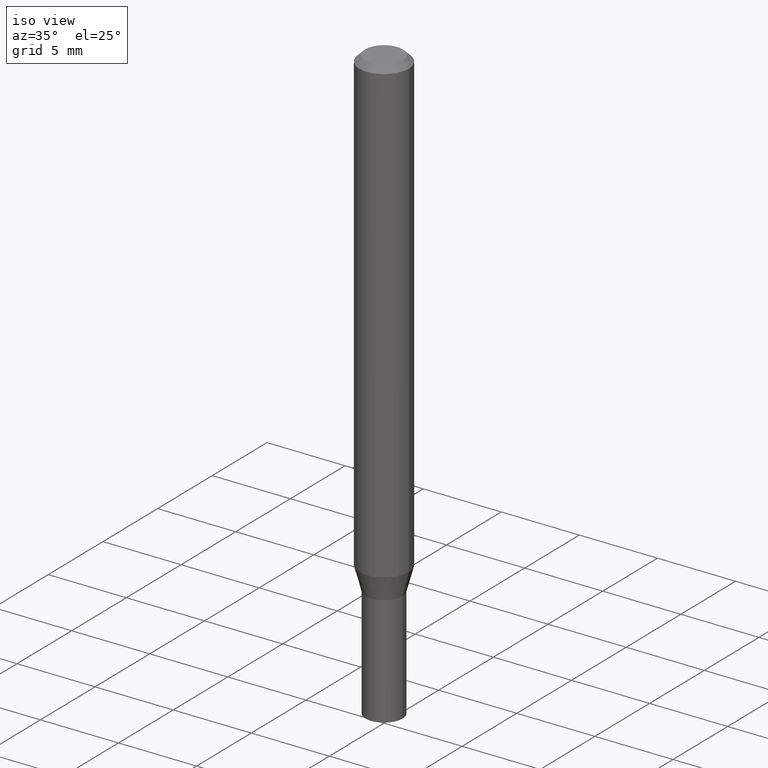
[diagram: clean part render]
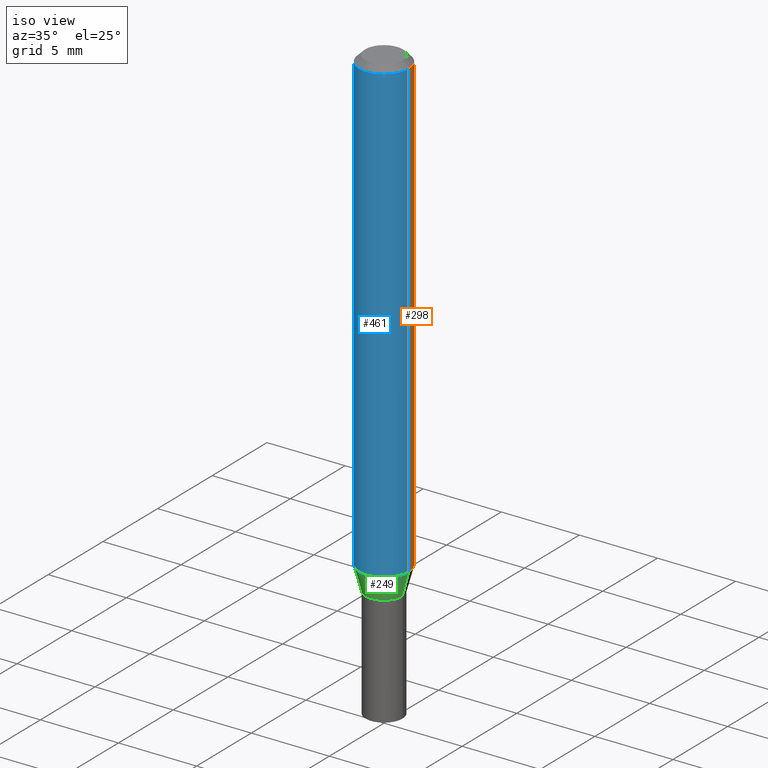
[diagram: same view with three faces highlighted in distinct colors, each labeled with its STEP entity id]
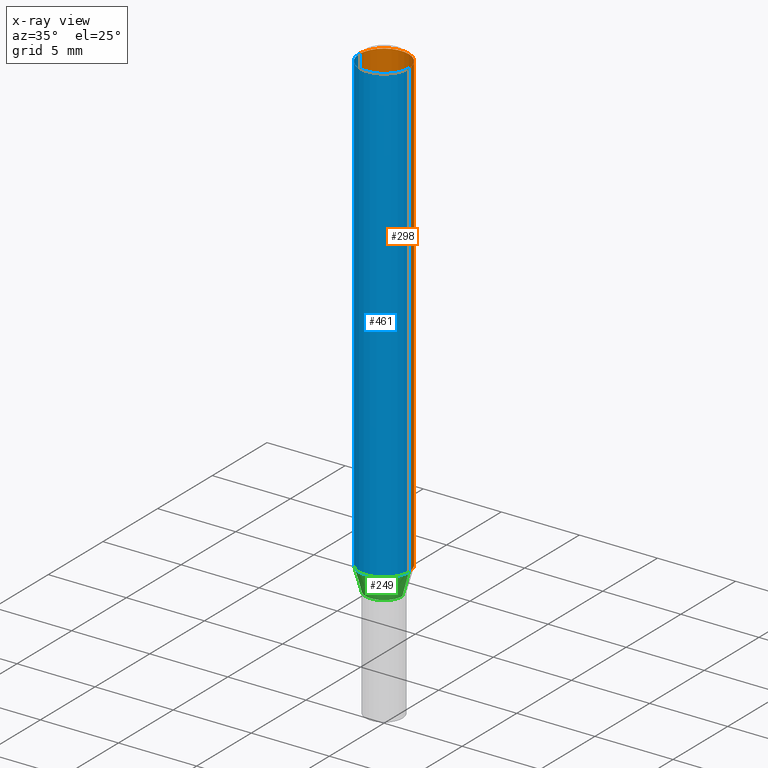
[diagram: x-ray of the same camera — body ghosted, the three highlighted faces saturated]
A machine part, iso view with three faces highlighted in distinct colors.
The next image is the same camera in x-ray (body ghosted, the three faces saturated) — at least one of them is partly hidden behind the body in this view.
Their STEP definitions:

[orange] entity #298 — the highlighted cylindrical surface (edge-blend (fillet) strip) has radius 1.5875 mm, axis along (-0, 0, 1).
#13 = VERTEX_POINT ( 'NONE', #205 ) ;
#40 = DIRECTION ( 'NONE',  ( -2.445468806185136597E-29, 3.491481338843145583E-15, 1.000000000000000000 ) ) ;
#44 = CARTESIAN_POINT ( 'NONE',  ( -0.06250000000000000000, 4.440892098500626162E-16, -3.074334431409316114E-30 ) ) ;
#51 = FACE_OUTER_BOUND ( 'NONE', #84, .T. ) ;
#84 = EDGE_LOOP ( 'NONE', ( #136, #132, #374, #376 ) ) ;
#86 = DIRECTION ( 'NONE',  ( -2.445468806185136877E-29, 3.491481338843145188E-15, 1.000000000000000000 ) ) ;
#89 = CIRCLE ( 'NONE', #380, 0.06250000000000000000 ) ;
#132 = ORIENTED_EDGE ( 'NONE', *, *, #331, .T. ) ;
#136 = ORIENTED_EDGE ( 'NONE', *, *, #222, .T. ) ;
#138 = CARTESIAN_POINT ( 'NONE',  ( 3.668203209277705088E-31, -5.237222008264718399E-17, -0.01499999999999999944 ) ) ;
#140 = DIRECTION ( 'NONE',  ( 1.000000000000000000, -6.982962677686266711E-15, 0.000000000000000000 ) ) ;
#146 = EDGE_CURVE ( 'NONE', #301, #13, #283, .T. ) ;
#157 = CARTESIAN_POINT ( 'NONE',  ( -0.06250000000000000000, -3.610523332873560286E-15, -1.161287187078898331 ) ) ;
#185 = DIRECTION ( 'NONE',  ( -2.445468806185136597E-29, 3.491481338843145583E-15, 1.000000000000000000 ) ) ;
#191 = CARTESIAN_POINT ( 'NONE',  ( 0.06250000000000000000, -4.888073874380388472E-16, -0.01499999999999999944 ) ) ;
#195 = LINE ( 'NONE', #441, #343 ) ;
#200 = CARTESIAN_POINT ( 'NONE',  ( 0.06250000000000000000, -4.491047710079014572E-15, -1.161287187078898331 ) ) ;
#205 = CARTESIAN_POINT ( 'NONE',  ( -0.06250000000000000000, -1.609403171553072375E-15, -0.01499999999999999944 ) ) ;
#222 = EDGE_CURVE ( 'NONE', #452, #344, #89, .T. ) ;
#241 = VECTOR ( 'NONE', #401, 39.37007874015748143 ) ;
#258 = CARTESIAN_POINT ( 'NONE',  ( 0.000000000000000000, 0.000000000000000000, 0.000000000000000000 ) ) ;
#266 = LINE ( 'NONE', #44, #241 ) ;
#270 = EDGE_CURVE ( 'NONE', #452, #301, #195, .T. ) ;
#283 = CIRCLE ( 'NONE', #398, 0.06250000000000000000 ) ;
#298 = ADVANCED_FACE ( 'NONE', ( #51 ), #410, .T. ) ;
#301 = VERTEX_POINT ( 'NONE', #191 ) ;
#321 = CARTESIAN_POINT ( 'NONE',  ( 2.839891591023928922E-29, -4.054612542723622902E-15, -1.161287187078898331 ) ) ;
#323 = DIRECTION ( 'NONE',  ( -2.445468806185136597E-29, 3.491481338843145583E-15, 1.000000000000000000 ) ) ;
#328 = DIRECTION ( 'NONE',  ( 1.000000000000000000, -6.982962677686270655E-15, 0.000000000000000000 ) ) ;
#331 = EDGE_CURVE ( 'NONE', #344, #13, #266, .T. ) ;
#332 = DIRECTION ( 'NONE',  ( 1.000000000000000000, -6.982962677686266711E-15, 4.876176775795935793E-29 ) ) ;
#343 = VECTOR ( 'NONE', #86, 39.37007874015748143 ) ;
#344 = VERTEX_POINT ( 'NONE', #157 ) ;
#364 = AXIS2_PLACEMENT_3D ( 'NONE', #258, #40, #332 ) ;
#374 = ORIENTED_EDGE ( 'NONE', *, *, #146, .F. ) ;
#376 = ORIENTED_EDGE ( 'NONE', *, *, #270, .F. ) ;
#380 = AXIS2_PLACEMENT_3D ( 'NONE', #321, #185, #328 ) ;
#398 = AXIS2_PLACEMENT_3D ( 'NONE', #138, #323, #140 ) ;
#401 = DIRECTION ( 'NONE',  ( -2.445468806185136877E-29, 3.491481338843145188E-15, 1.000000000000000000 ) ) ;
#410 = CYLINDRICAL_SURFACE ( 'NONE', #364, 0.06250000000000000000 ) ;
#441 = CARTESIAN_POINT ( 'NONE',  ( 0.06250000000000000000, -4.364351673553916694E-16, 3.047610484872459871E-30 ) ) ;
#452 = VERTEX_POINT ( 'NONE', #200 ) ;

[blue] entity #461 — the highlighted cylindrical surface (edge-blend (fillet) strip) has radius 1.5875 mm, axis along (-0, 0, 1).
#13 = VERTEX_POINT ( 'NONE', #205 ) ;
#18 = DIRECTION ( 'NONE',  ( -2.445468806185136597E-29, 3.491481338843145583E-15, 1.000000000000000000 ) ) ;
#21 = CYLINDRICAL_SURFACE ( 'NONE', #313, 0.06250000000000000000 ) ;
#32 = EDGE_CURVE ( 'NONE', #344, #452, #193, .T. ) ;
#43 = ORIENTED_EDGE ( 'NONE', *, *, #331, .F. ) ;
#44 = CARTESIAN_POINT ( 'NONE',  ( -0.06250000000000000000, 4.440892098500626162E-16, -3.074334431409316114E-30 ) ) ;
#86 = DIRECTION ( 'NONE',  ( -2.445468806185136877E-29, 3.491481338843145188E-15, 1.000000000000000000 ) ) ;
#99 = FACE_OUTER_BOUND ( 'NONE', #419, .T. ) ;
#108 = AXIS2_PLACEMENT_3D ( 'NONE', #169, #206, #163 ) ;
#130 = ORIENTED_EDGE ( 'NONE', *, *, #270, .T. ) ;
#157 = CARTESIAN_POINT ( 'NONE',  ( -0.06250000000000000000, -3.610523332873560286E-15, -1.161287187078898331 ) ) ;
#163 = DIRECTION ( 'NONE',  ( 1.000000000000000000, -6.982962677686266711E-15, 0.000000000000000000 ) ) ;
#165 = CARTESIAN_POINT ( 'NONE',  ( 0.000000000000000000, 0.000000000000000000, 0.000000000000000000 ) ) ;
#169 = CARTESIAN_POINT ( 'NONE',  ( 3.668203209277705088E-31, -5.237222008264718399E-17, -0.01499999999999999944 ) ) ;
#191 = CARTESIAN_POINT ( 'NONE',  ( 0.06250000000000000000, -4.888073874380388472E-16, -0.01499999999999999944 ) ) ;
#193 = CIRCLE ( 'NONE', #296, 0.06250000000000000000 ) ;
#195 = LINE ( 'NONE', #441, #343 ) ;
#200 = CARTESIAN_POINT ( 'NONE',  ( 0.06250000000000000000, -4.491047710079014572E-15, -1.161287187078898331 ) ) ;
#205 = CARTESIAN_POINT ( 'NONE',  ( -0.06250000000000000000, -1.609403171553072375E-15, -0.01499999999999999944 ) ) ;
#206 = DIRECTION ( 'NONE',  ( -2.445468806185136597E-29, 3.491481338843145583E-15, 1.000000000000000000 ) ) ;
#241 = VECTOR ( 'NONE', #401, 39.37007874015748143 ) ;
#243 = DIRECTION ( 'NONE',  ( 1.000000000000000000, -6.982962677686266711E-15, 4.876176775795935793E-29 ) ) ;
#266 = LINE ( 'NONE', #44, #241 ) ;
#270 = EDGE_CURVE ( 'NONE', #452, #301, #195, .T. ) ;
#296 = AXIS2_PLACEMENT_3D ( 'NONE', #310, #18, #426 ) ;
#301 = VERTEX_POINT ( 'NONE', #191 ) ;
#310 = CARTESIAN_POINT ( 'NONE',  ( 2.839891591023928922E-29, -4.054612542723622902E-15, -1.161287187078898331 ) ) ;
#313 = AXIS2_PLACEMENT_3D ( 'NONE', #165, #448, #243 ) ;
#331 = EDGE_CURVE ( 'NONE', #344, #13, #266, .T. ) ;
#333 = ORIENTED_EDGE ( 'NONE', *, *, #423, .F. ) ;
#336 = ORIENTED_EDGE ( 'NONE', *, *, #32, .T. ) ;
#343 = VECTOR ( 'NONE', #86, 39.37007874015748143 ) ;
#344 = VERTEX_POINT ( 'NONE', #157 ) ;
#357 = CIRCLE ( 'NONE', #108, 0.06250000000000000000 ) ;
#401 = DIRECTION ( 'NONE',  ( -2.445468806185136877E-29, 3.491481338843145188E-15, 1.000000000000000000 ) ) ;
#419 = EDGE_LOOP ( 'NONE', ( #43, #336, #130, #333 ) ) ;
#423 = EDGE_CURVE ( 'NONE', #13, #301, #357, .T. ) ;
#426 = DIRECTION ( 'NONE',  ( 1.000000000000000000, -6.982962677686270655E-15, 0.000000000000000000 ) ) ;
#441 = CARTESIAN_POINT ( 'NONE',  ( 0.06250000000000000000, -4.364351673553916694E-16, 3.047610484872459871E-30 ) ) ;
#448 = DIRECTION ( 'NONE',  ( -2.445468806185136597E-29, 3.491481338843145583E-15, 1.000000000000000000 ) ) ;
#452 = VERTEX_POINT ( 'NONE', #200 ) ;
#461 = ADVANCED_FACE ( 'NONE', ( #99 ), #21, .T. ) ;

[green] entity #249 — the highlighted conical surface has half-angle 15 deg.
#4 = LINE ( 'NONE', #150, #80 ) ;
#18 = DIRECTION ( 'NONE',  ( -2.445468806185136597E-29, 3.491481338843145583E-15, 1.000000000000000000 ) ) ;
#22 = ORIENTED_EDGE ( 'NONE', *, *, #85, .T. ) ;
#26 = DIRECTION ( 'NONE',  ( 1.000000000000000000, -6.982962677686269077E-15, 0.000000000000000000 ) ) ;
#29 = AXIS2_PLACEMENT_3D ( 'NONE', #234, #78, #362 ) ;
#32 = EDGE_CURVE ( 'NONE', #344, #452, #193, .T. ) ;
#35 = FACE_OUTER_BOUND ( 'NONE', #192, .T. ) ;
#53 = CARTESIAN_POINT ( 'NONE',  ( -0.04650000000000007599, -3.771609837736297166E-15, -1.221000000000000085 ) ) ;
#77 = DIRECTION ( 'NONE',  ( 0.2588190451025207395, 1.565188264969626109E-15, 0.9659258262890682012 ) ) ;
#78 = DIRECTION ( 'NONE',  ( -2.445468806185136597E-29, 3.491481338843145583E-15, 1.000000000000000000 ) ) ;
#80 = VECTOR ( 'NONE', #442, 39.37007874015748854 ) ;
#85 = EDGE_CURVE ( 'NONE', #229, #452, #354, .T. ) ;
#150 = CARTESIAN_POINT ( 'NONE',  ( -0.04650000000000007599, -3.932696342599034046E-15, -1.221000000000000085 ) ) ;
#157 = CARTESIAN_POINT ( 'NONE',  ( -0.06250000000000000000, -3.610523332873560286E-15, -1.161287187078898331 ) ) ;
#160 = CIRCLE ( 'NONE', #29, 0.04650000000000007599 ) ;
#192 = EDGE_LOOP ( 'NONE', ( #244, #209, #22, #307 ) ) ;
#193 = CIRCLE ( 'NONE', #296, 0.06250000000000000000 ) ;
#200 = CARTESIAN_POINT ( 'NONE',  ( 0.06250000000000000000, -4.491047710079014572E-15, -1.161287187078898331 ) ) ;
#209 = ORIENTED_EDGE ( 'NONE', *, *, #349, .T. ) ;
#212 = CARTESIAN_POINT ( 'NONE',  ( 2.985917412352052273E-29, -4.263098714727481320E-15, -1.221000000000000085 ) ) ;
#229 = VERTEX_POINT ( 'NONE', #251 ) ;
#234 = CARTESIAN_POINT ( 'NONE',  ( 2.985917412352052273E-29, -4.263098714727481320E-15, -1.221000000000000085 ) ) ;
#244 = ORIENTED_EDGE ( 'NONE', *, *, #383, .F. ) ;
#249 = ADVANCED_FACE ( 'NONE', ( #35 ), #414, .T. ) ;
#251 = CARTESIAN_POINT ( 'NONE',  ( 0.04650000000000007599, -4.587806479239893606E-15, -1.221000000000000085 ) ) ;
#296 = AXIS2_PLACEMENT_3D ( 'NONE', #310, #18, #426 ) ;
#302 = VECTOR ( 'NONE', #77, 39.37007874015748854 ) ;
#307 = ORIENTED_EDGE ( 'NONE', *, *, #32, .F. ) ;
#310 = CARTESIAN_POINT ( 'NONE',  ( 2.839891591023928922E-29, -4.054612542723622902E-15, -1.161287187078898331 ) ) ;
#326 = CARTESIAN_POINT ( 'NONE',  ( 0.04650000000000007599, -4.587806479239893606E-15, -1.221000000000000085 ) ) ;
#344 = VERTEX_POINT ( 'NONE', #157 ) ;
#349 = EDGE_CURVE ( 'NONE', #424, #229, #160, .T. ) ;
#353 = DIRECTION ( 'NONE',  ( -2.445468806185136597E-29, 3.491481338843145583E-15, 1.000000000000000000 ) ) ;
#354 = LINE ( 'NONE', #326, #302 ) ;
#362 = DIRECTION ( 'NONE',  ( 1.000000000000000000, -6.982962677686269077E-15, 0.000000000000000000 ) ) ;
#383 = EDGE_CURVE ( 'NONE', #424, #344, #4, .T. ) ;
#414 = CONICAL_SURFACE ( 'NONE', #439, 0.04650000000000007599, 0.2617993877991494633 ) ;
#424 = VERTEX_POINT ( 'NONE', #53 ) ;
#426 = DIRECTION ( 'NONE',  ( 1.000000000000000000, -6.982962677686270655E-15, 0.000000000000000000 ) ) ;
#439 = AXIS2_PLACEMENT_3D ( 'NONE', #212, #353, #26 ) ;
#442 = DIRECTION ( 'NONE',  ( -0.2588190451025207395, 5.211531920934546309E-15, 0.9659258262890682012 ) ) ;
#452 = VERTEX_POINT ( 'NONE', #200 ) ;